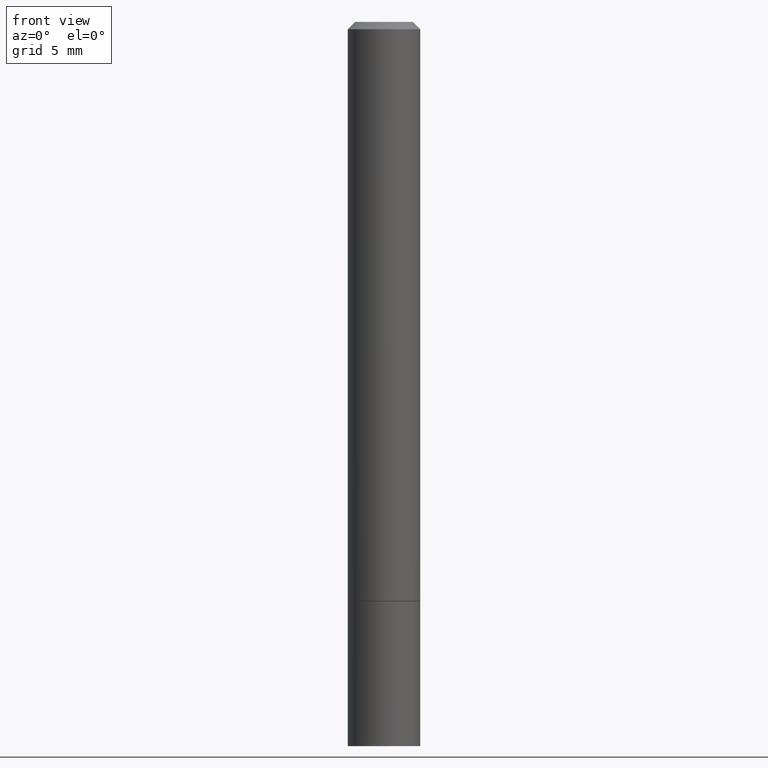
[diagram: clean part render]
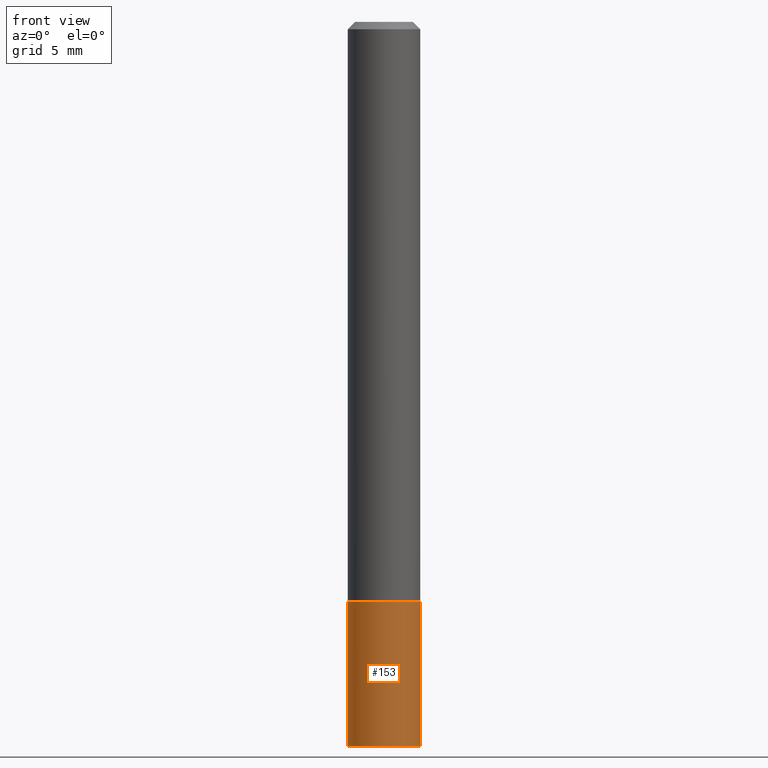
[diagram: same view with one face highlighted and labeled with its STEP entity id]
A machine part, front view. The second image highlights one B-rep face of the part: STEP entity #153.
In plain terms, the highlighted cylindrical surface (edge-blend (fillet) strip) has radius 2.5006 mm, axis along (-0, 0, 1).
Its self-contained STEP definition (entity closure, byte-faithful):
#2 = CARTESIAN_POINT ( 'NONE',  ( 0.09844999999999999585, -6.874726756182129545E-16, 4.800596035771099214E-30 ) ) ;
#6 = AXIS2_PLACEMENT_3D ( 'NONE', #232, #221, #342 ) ;
#8 = CARTESIAN_POINT ( 'NONE',  ( -0.09844999999999999585, -5.486153590605640426E-15, -1.968500000000000139 ) ) ;
#19 = ORIENTED_EDGE ( 'NONE', *, *, #261, .T. ) ;
#21 = VERTEX_POINT ( 'NONE', #343 ) ;
#26 = CARTESIAN_POINT ( 'NONE',  ( 0.09844999999999999585, -7.560453691130944267E-15, -1.968500000000000139 ) ) ;
#45 = ORIENTED_EDGE ( 'NONE', *, *, #151, .F. ) ;
#72 = AXIS2_PLACEMENT_3D ( 'NONE', #160, #275, #111 ) ;
#77 = LINE ( 'NONE', #2, #136 ) ;
#81 = VERTEX_POINT ( 'NONE', #344 ) ;
#82 = VERTEX_POINT ( 'NONE', #26 ) ;
#104 = AXIS2_PLACEMENT_3D ( 'NONE', #292, #348, #242 ) ;
#111 = DIRECTION ( 'NONE',  ( 1.000000000000000000, -6.982962677686265922E-15, 0.000000000000000000 ) ) ;
#119 = FACE_OUTER_BOUND ( 'NONE', #246, .T. ) ;
#136 = VECTOR ( 'NONE', #363, 39.37007874015748143 ) ;
#150 = VERTEX_POINT ( 'NONE', #8 ) ;
#151 = EDGE_CURVE ( 'NONE', #150, #21, #216, .T. ) ;
#153 = ADVANCED_FACE ( 'NONE', ( #119 ), #180, .T. ) ;
#157 = VECTOR ( 'NONE', #353, 39.37007874015748143 ) ;
#160 = CARTESIAN_POINT ( 'NONE',  ( 4.813905344975441835E-29, -6.872981015512731707E-15, -1.968500000000000139 ) ) ;
#180 = CYLINDRICAL_SURFACE ( 'NONE', #104, 0.09844999999999999585 ) ;
#199 = CIRCLE ( 'NONE', #6, 0.09844999999999999585 ) ;
#216 = LINE ( 'NONE', #322, #157 ) ;
#221 = DIRECTION ( 'NONE',  ( -2.445468806185136597E-29, 3.491481338843145583E-15, 1.000000000000000000 ) ) ;
#232 = CARTESIAN_POINT ( 'NONE',  ( 3.851124275980353356E-29, -5.498384812410186155E-15, -1.574800000000000200 ) ) ;
#242 = DIRECTION ( 'NONE',  ( 1.000000000000000000, -6.982962677686266711E-15, 4.876176775795936353E-29 ) ) ;
#246 = EDGE_LOOP ( 'NONE', ( #45, #304, #19, #349 ) ) ;
#261 = EDGE_CURVE ( 'NONE', #82, #81, #77, .T. ) ;
#275 = DIRECTION ( 'NONE',  ( -2.445468806185136597E-29, 3.491481338843145583E-15, 1.000000000000000000 ) ) ;
#289 = EDGE_CURVE ( 'NONE', #150, #82, #334, .T. ) ;
#292 = CARTESIAN_POINT ( 'NONE',  ( 0.000000000000000000, 0.000000000000000000, 0.000000000000000000 ) ) ;
#304 = ORIENTED_EDGE ( 'NONE', *, *, #289, .T. ) ;
#305 = EDGE_CURVE ( 'NONE', #21, #81, #199, .T. ) ;
#322 = CARTESIAN_POINT ( 'NONE',  ( -0.09844999999999999585, 6.995293233558186035E-16, -4.842691596355954042E-30 ) ) ;
#334 = CIRCLE ( 'NONE', #72, 0.09844999999999999585 ) ;
#342 = DIRECTION ( 'NONE',  ( 1.000000000000000000, -6.982962677686265922E-15, 0.000000000000000000 ) ) ;
#343 = CARTESIAN_POINT ( 'NONE',  ( -0.09844999999999999585, -5.486153590605640426E-15, -1.574800000000000200 ) ) ;
#344 = CARTESIAN_POINT ( 'NONE',  ( 0.09844999999999999585, -6.185857488028398715E-15, -1.574800000000000200 ) ) ;
#348 = DIRECTION ( 'NONE',  ( -2.445468806185136597E-29, 3.491481338843145583E-15, 1.000000000000000000 ) ) ;
#349 = ORIENTED_EDGE ( 'NONE', *, *, #305, .F. ) ;
#353 = DIRECTION ( 'NONE',  ( -2.445468806185136877E-29, 3.491481338843145188E-15, 1.000000000000000000 ) ) ;
#363 = DIRECTION ( 'NONE',  ( -2.445468806185136877E-29, 3.491481338843145188E-15, 1.000000000000000000 ) ) ;